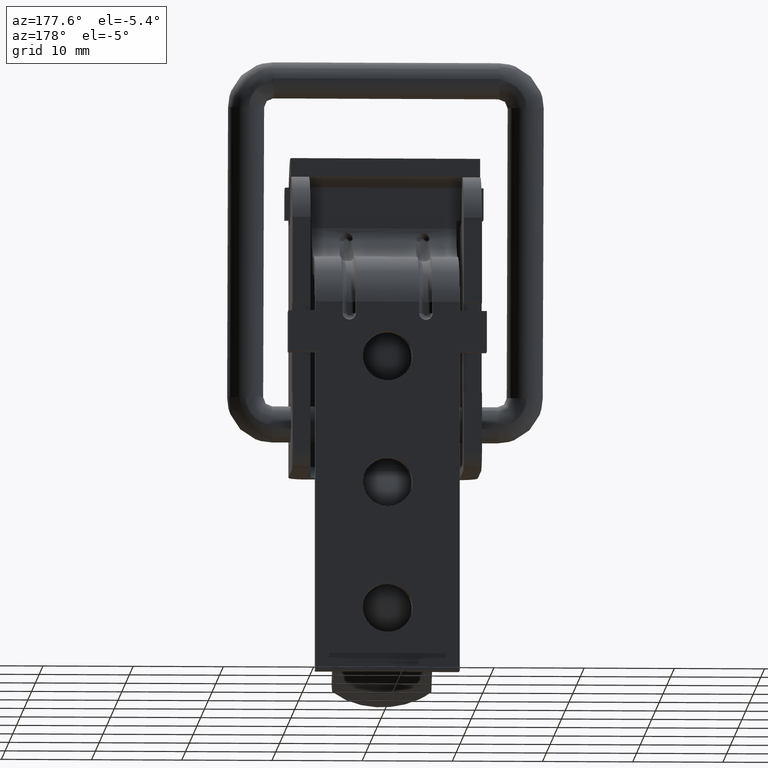
[diagram: clean part render]
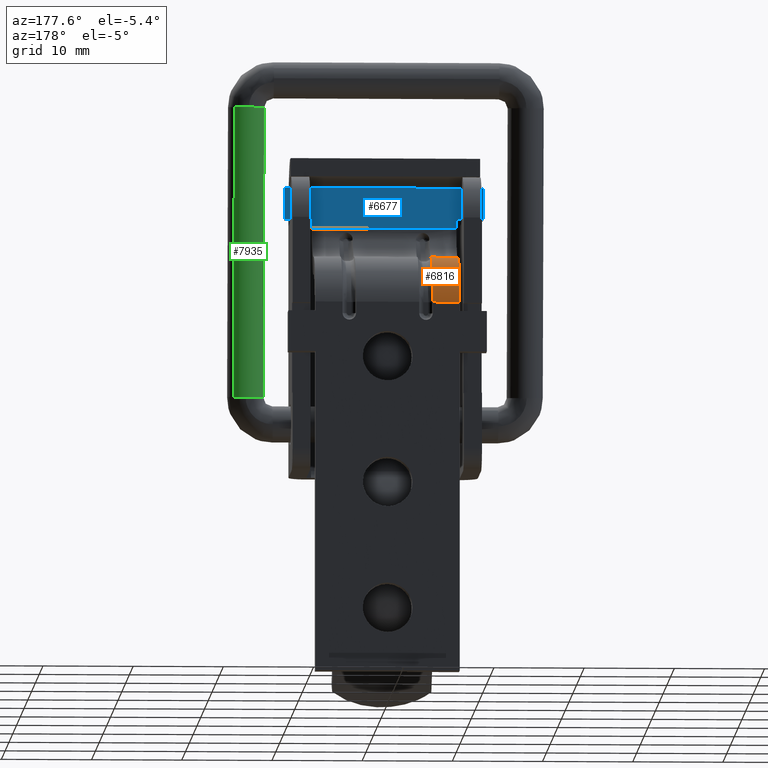
[diagram: same view with three faces highlighted in distinct colors, each labeled with its STEP entity id]
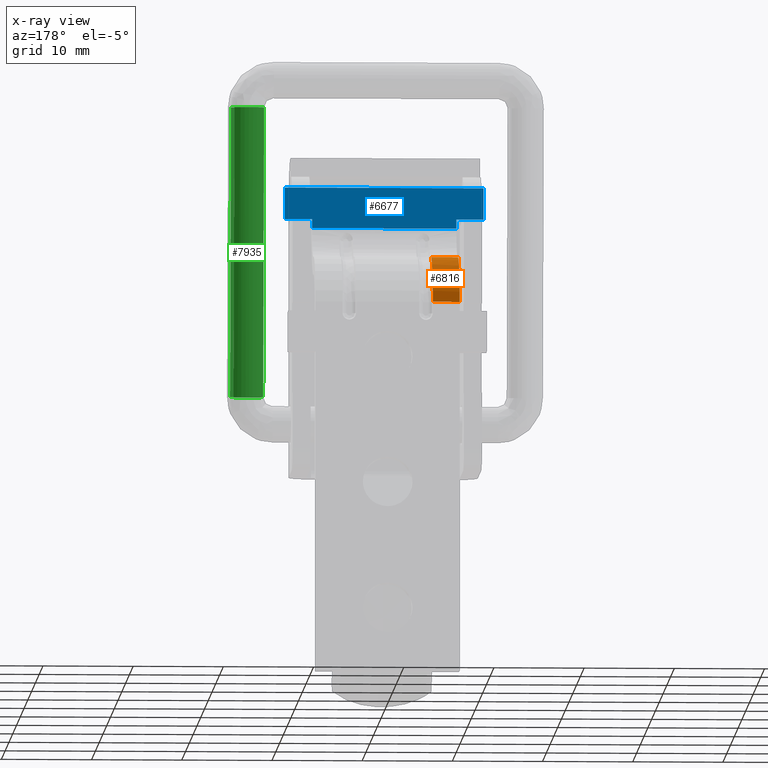
[diagram: x-ray of the same camera — body ghosted, the three highlighted faces saturated]
A machine part, auxiliary view with three faces highlighted in distinct colors.
The next image is the same camera in x-ray (body ghosted, the three faces saturated) — at least one of them is partly hidden behind the body in this view.
Their STEP definitions:

[orange] entity #6816 — the highlighted face is a freeform B-spline surface patch.
#5615=CARTESIAN_POINT('',(-5.0,2.000000000000085,18.500000000000000));
#5616=VERTEX_POINT('',#5615);
#5672=CARTESIAN_POINT('',(-5.0,7.500000000000090,13.0));
#5673=VERTEX_POINT('',#5672);
#5684=CARTESIAN_POINT('',(-5.0,7.500000000000090,13.0));
#5685=CARTESIAN_POINT('',(-5.000000000000008,7.500062064665316,13.382477102440481));
#5686=CARTESIAN_POINT('',(-4.999999999999988,7.429297456282781,14.057403625102150));
#5687=CARTESIAN_POINT('',(-5.000000000000013,7.185367205519238,14.879645425788169));
#5688=CARTESIAN_POINT('',(-4.999999999999996,6.874994575595960,15.579810695480210));
#5689=CARTESIAN_POINT('',(-5.000000000000004,6.464754063712999,16.254873608102120));
#5690=CARTESIAN_POINT('',(-4.999999999999994,5.860025239514116,16.955938035807840));
#5691=CARTESIAN_POINT('',(-5.000000000000002,5.179242957225613,17.514614655932299));
#5692=CARTESIAN_POINT('',(-5.000000000000004,4.460979389565148,17.939155786293281));
#5693=CARTESIAN_POINT('',(-5.000000000000003,3.794019354002085,18.215410805846190));
#5694=CARTESIAN_POINT('',(-5.000000000000002,2.967402635703468,18.438719482402870));
#5695=CARTESIAN_POINT('',(-4.999999999999999,2.382476244702943,18.500065889623251));
#5696=CARTESIAN_POINT('',(-5.0,2.000000000000085,18.500000000000000));
#5697=B_SPLINE_CURVE_WITH_KNOTS('',3,(#5684,#5685,#5686,#5687,#5688,#5689,#5690,#5691,#5692,#5693,#5694,#5695,#5696),.UNSPECIFIED.,.F.,.U.,(4,1,1,1,1,1,1,1,1,1,4),(0.000000050258247,1.147424598638477,2.024865915913889,2.564837096607967,3.442277995862842,4.387198209195670,5.332134766040785,6.074596393570190,6.884554638865188,7.492018337429286,8.639434005814325),.UNSPECIFIED.);
#5698=EDGE_CURVE('',#5673,#5616,#5697,.T.);
#6556=CARTESIAN_POINT('',(-8.0,2.000000000000085,18.500000000000000));
#6557=VERTEX_POINT('',#6556);
#6572=CARTESIAN_POINT('',(-8.0,7.500000000000000,13.0));
#6573=VERTEX_POINT('',#6572);
#6574=CARTESIAN_POINT('',(-8.0,2.000000000000085,18.500000000000000));
#6575=CARTESIAN_POINT('',(-8.000000000000011,2.472482813171673,18.500154260777329));
#6576=CARTESIAN_POINT('',(-7.999999999999984,3.147353970370260,18.412469849688879));
#6577=CARTESIAN_POINT('',(-8.000000000000011,4.069205826910042,18.114157121874118));
#6578=CARTESIAN_POINT('',(-7.999999999999996,4.842293476239624,17.742753935934729));
#6579=CARTESIAN_POINT('',(-7.999999999999987,5.593475769033982,17.199768240450410));
#6580=CARTESIAN_POINT('',(-8.000000000000027,6.270925326486102,16.505458402923701));
#6581=CARTESIAN_POINT('',(-7.999999999999933,6.877134909420597,15.633579547507050));
#6582=CARTESIAN_POINT('',(-8.000000000000005,7.371608811679110,14.439831116815780));
#6583=CARTESIAN_POINT('',(-8.000000000000005,7.500134700668544,13.494974328810629));
#6584=CARTESIAN_POINT('',(-8.0,7.500000000000000,13.0));
#6585=B_SPLINE_CURVE_WITH_KNOTS('',3,(#6574,#6575,#6576,#6577,#6578,#6579,#6580,#6581,#6582,#6583,#6584),.UNSPECIFIED.,.F.,.U.,(4,1,1,1,1,1,1,1,4),(0.000000050257022,1.417398554501729,2.024865915913315,2.902320228727526,3.982257159931999,4.792177720514195,5.804611560366814,7.154539472068876,8.639434005814225),.UNSPECIFIED.);
#6586=EDGE_CURVE('',#6557,#6573,#6585,.T.);
#6788=CARTESIAN_POINT('',(-8.074999999999999,1.856026784306781,18.498115287365572));
#6789=CARTESIAN_POINT('',(-4.923125000000001,1.856026784306781,18.498115287365572));
#6790=CARTESIAN_POINT('',(-8.074999999999998,7.912416403051044,18.656707430914437));
#6791=CARTESIAN_POINT('',(-4.923125000000001,7.912416403051044,18.656707430914437));
#6792=CARTESIAN_POINT('',(-8.074999999999999,7.486384636594541,12.613239584057087));
#6793=CARTESIAN_POINT('',(-4.923125000000001,7.486384636594541,12.613239584057087));
#6801=(BOUNDED_SURFACE()B_SPLINE_SURFACE(1,2,((#6788,#6790,#6792),(#6789,#6791,#6793)),.UNSPECIFIED.,.F.,.F.,.U.)B_SPLINE_SURFACE_WITH_KNOTS((2,2),(3,3),(0.0,3.151874999999999),(0.0,9.741282892486000),.UNSPECIFIED.)GEOMETRIC_REPRESENTATION_ITEM()RATIONAL_B_SPLINE_SURFACE(((1.0,0.670944223154768,0.996392648609106),(1.0,0.670944223154768,0.996392648609106)))REPRESENTATION_ITEM('')SURFACE());
#6802=CARTESIAN_POINT('',(-8.0,2.000000000000085,18.500000000000000));
#6803=CARTESIAN_POINT('',(-5.0,2.000000000000085,18.500000000000000));
#6804=QUASI_UNIFORM_CURVE('',1,(#6802,#6803),.UNSPECIFIED.,.F.,.U.);
#6805=EDGE_CURVE('',#6557,#5616,#6804,.T.);
#6806=ORIENTED_EDGE('',*,*,#6805,.T.);
#6807=ORIENTED_EDGE('',*,*,#5698,.F.);
#6808=CARTESIAN_POINT('',(-8.0,7.500000000000000,13.0));
#6809=CARTESIAN_POINT('',(-5.0,7.500000000000090,13.0));
#6810=QUASI_UNIFORM_CURVE('',1,(#6808,#6809),.UNSPECIFIED.,.F.,.U.);
#6811=EDGE_CURVE('',#6573,#5673,#6810,.T.);
#6812=ORIENTED_EDGE('',*,*,#6811,.F.);
#6813=ORIENTED_EDGE('',*,*,#6586,.F.);
#6814=EDGE_LOOP('',(#6806,#6807,#6812,#6813));
#6815=FACE_OUTER_BOUND('',#6814,.T.);
#6816=ADVANCED_FACE('',(#6815),#6801,.T.);

[blue] entity #6677 — the highlighted face is a freeform B-spline surface patch.
#6287=CARTESIAN_POINT('',(8.000000000000119,-1.499999999999914,22.0));
#6288=VERTEX_POINT('',#6287);
#6303=CARTESIAN_POINT('',(8.000000000000110,-1.499999999999946,23.0));
#6304=VERTEX_POINT('',#6303);
#6305=CARTESIAN_POINT('',(8.000000000000119,-1.499999999999914,22.0));
#6306=CARTESIAN_POINT('',(8.000000000000110,-1.499999999999946,23.0));
#6307=QUASI_UNIFORM_CURVE('',1,(#6305,#6306),.UNSPECIFIED.,.F.,.U.);
#6308=EDGE_CURVE('',#6288,#6304,#6307,.T.);
#6331=CARTESIAN_POINT('',(11.0,-1.499999999999946,23.0));
#6332=VERTEX_POINT('',#6331);
#6333=CARTESIAN_POINT('',(8.000000000000110,-1.499999999999946,23.0));
#6334=CARTESIAN_POINT('',(11.0,-1.499999999999946,23.0));
#6335=QUASI_UNIFORM_CURVE('',1,(#6333,#6334),.UNSPECIFIED.,.F.,.U.);
#6336=EDGE_CURVE('',#6304,#6332,#6335,.T.);
#6351=CARTESIAN_POINT('',(11.0,-1.499999999999946,26.500000000000000));
#6352=VERTEX_POINT('',#6351);
#6365=CARTESIAN_POINT('',(11.0,-1.499999999999946,23.0));
#6366=CARTESIAN_POINT('',(11.0,-1.499999999999946,26.500000000000000));
#6367=QUASI_UNIFORM_CURVE('',1,(#6365,#6366),.UNSPECIFIED.,.F.,.U.);
#6368=EDGE_CURVE('',#6332,#6352,#6367,.T.);
#6506=CARTESIAN_POINT('',(-11.0,-1.499999999999946,26.500000000000000));
#6507=VERTEX_POINT('',#6506);
#6513=CARTESIAN_POINT('',(-11.0,-1.499999999999914,23.0));
#6514=VERTEX_POINT('',#6513);
#6515=CARTESIAN_POINT('',(-11.0,-1.499999999999946,26.500000000000000));
#6516=CARTESIAN_POINT('',(-11.0,-1.499999999999914,23.0));
#6517=QUASI_UNIFORM_CURVE('',1,(#6515,#6516),.UNSPECIFIED.,.F.,.U.);
#6518=EDGE_CURVE('',#6507,#6514,#6517,.T.);
#6542=CARTESIAN_POINT('',(-8.0,-1.499999999999946,23.0));
#6543=VERTEX_POINT('',#6542);
#6549=CARTESIAN_POINT('',(-8.0,-1.499999999999914,22.0));
#6550=VERTEX_POINT('',#6549);
#6551=CARTESIAN_POINT('',(-8.0,-1.499999999999946,23.0));
#6552=CARTESIAN_POINT('',(-8.0,-1.499999999999914,22.0));
#6553=QUASI_UNIFORM_CURVE('',1,(#6551,#6552),.UNSPECIFIED.,.F.,.U.);
#6554=EDGE_CURVE('',#6543,#6550,#6553,.T.);
#6645=CARTESIAN_POINT('',(-11.0,-1.499999999999914,23.0));
#6646=CARTESIAN_POINT('',(-8.0,-1.499999999999946,23.0));
#6647=QUASI_UNIFORM_CURVE('',1,(#6645,#6646),.UNSPECIFIED.,.F.,.U.);
#6648=EDGE_CURVE('',#6514,#6543,#6647,.T.);
#6654=CARTESIAN_POINT('',(-12.098899957359730,-1.499999999999914,21.775225008721868));
#6655=CARTESIAN_POINT('',(-12.098899957359730,-1.499999999999914,26.724775111977539));
#6656=CARTESIAN_POINT('',(12.098900547445711,-1.499999999999914,21.775225008721868));
#6657=CARTESIAN_POINT('',(12.098900547445711,-1.499999999999914,26.724775111977539));
#6658=B_SPLINE_SURFACE_WITH_KNOTS('',1,1,((#6654,#6656),(#6655,#6657)),.UNSPECIFIED.,.F.,.F.,.U.,(2,2),(2,2),(0.0,4.949550103255664),(0.0,24.197800504805450),.UNSPECIFIED.);
#6659=ORIENTED_EDGE('',*,*,#6368,.F.);
#6660=ORIENTED_EDGE('',*,*,#6336,.F.);
#6661=ORIENTED_EDGE('',*,*,#6308,.F.);
#6662=CARTESIAN_POINT('',(-8.0,-1.499999999999914,22.0));
#6663=CARTESIAN_POINT('',(8.000000000000119,-1.499999999999914,22.0));
#6664=QUASI_UNIFORM_CURVE('',1,(#6662,#6663),.UNSPECIFIED.,.F.,.U.);
#6665=EDGE_CURVE('',#6550,#6288,#6664,.T.);
#6666=ORIENTED_EDGE('',*,*,#6665,.F.);
#6667=ORIENTED_EDGE('',*,*,#6554,.F.);
#6668=ORIENTED_EDGE('',*,*,#6648,.F.);
#6669=ORIENTED_EDGE('',*,*,#6518,.F.);
#6670=CARTESIAN_POINT('',(-11.0,-1.499999999999946,26.500000000000000));
#6671=CARTESIAN_POINT('',(11.0,-1.499999999999946,26.500000000000000));
#6672=QUASI_UNIFORM_CURVE('',1,(#6670,#6671),.UNSPECIFIED.,.F.,.U.);
#6673=EDGE_CURVE('',#6507,#6352,#6672,.T.);
#6674=ORIENTED_EDGE('',*,*,#6673,.T.);
#6675=EDGE_LOOP('',(#6659,#6660,#6661,#6666,#6667,#6668,#6669,#6674));
#6676=FACE_OUTER_BOUND('',#6675,.T.);
#6677=ADVANCED_FACE('',(#6676),#6658,.T.);

[green] entity #7935 — the highlighted face is a freeform B-spline surface patch.
#7748=CARTESIAN_POINT('',(17.120705282292398,-1.171884972159153,35.118237105096640));
#7749=VERTEX_POINT('',#7748);
#7758=CARTESIAN_POINT('',(17.120705295809071,-1.171884953455932,3.000000000100478));
#7759=VERTEX_POINT('',#7758);
#7760=CARTESIAN_POINT('',(17.120705295809071,-1.171884953455932,3.000000000100478));
#7761=CARTESIAN_POINT('',(17.120705282292398,-1.171884972159153,35.118237105096640));
#7762=QUASI_UNIFORM_CURVE('',1,(#7760,#7761),.UNSPECIFIED.,.F.,.U.);
#7763=EDGE_CURVE('',#7759,#7749,#7762,.T.);
#7775=CARTESIAN_POINT('',(16.851180352888210,1.474554730606532,2.999999999919746));
#7776=VERTEX_POINT('',#7775);
#7786=CARTESIAN_POINT('',(16.851180356896538,1.474554727074220,35.118237105129481));
#7787=VERTEX_POINT('',#7786);
#7788=CARTESIAN_POINT('',(16.851180352888210,1.474554730606532,2.999999999919746));
#7789=CARTESIAN_POINT('',(16.851180356896538,1.474554727074220,35.118237105129481));
#7790=QUASI_UNIFORM_CURVE('',1,(#7788,#7789),.UNSPECIFIED.,.F.,.U.);
#7791=EDGE_CURVE('',#7776,#7787,#7790,.T.);
#7805=CARTESIAN_POINT('',(16.851180415231319,1.474554673620249,2.197044071656591));
#7806=CARTESIAN_POINT('',(15.376625741611079,2.825735088851569,2.197044071656591));
#7807=CARTESIAN_POINT('',(14.025445326379749,1.351180415231321,2.197044071656591));
#7808=CARTESIAN_POINT('',(12.674264911148432,-0.123374258388927,2.197044071656591));
#7809=CARTESIAN_POINT('',(14.148819584768679,-1.474554673620247,2.197044071656591));
#7810=CARTESIAN_POINT('',(15.623374258388928,-2.825735088851567,2.197044071656591));
#7811=CARTESIAN_POINT('',(16.974554673620251,-1.351180415231319,2.197044071656591));
#7812=CARTESIAN_POINT('',(17.052822919433339,-1.265765613211717,2.197044071656591));
#7813=CARTESIAN_POINT('',(17.120705324658456,-1.171884913557532,2.197044071656591));
#7814=CARTESIAN_POINT('',(16.851180415231319,1.474554673620246,35.941266932203781));
#7815=CARTESIAN_POINT('',(15.376625741611079,2.825735088851566,35.941266932203789));
#7816=CARTESIAN_POINT('',(14.025445326379749,1.351180415231319,35.941266932203781));
#7817=CARTESIAN_POINT('',(12.674264911148432,-0.123374258388929,35.941266932203789));
#7818=CARTESIAN_POINT('',(14.148819584768679,-1.474554673620249,35.941266932203781));
#7819=CARTESIAN_POINT('',(15.623374258388928,-2.825735088851569,35.941266932203789));
#7820=CARTESIAN_POINT('',(16.974554673620251,-1.351180415231321,35.941266932203781));
#7821=CARTESIAN_POINT('',(17.052822919433339,-1.265765613211719,35.941266932203781));
#7822=CARTESIAN_POINT('',(17.120705324658456,-1.171884913557534,35.941266932203781));
#7830=(BOUNDED_SURFACE()B_SPLINE_SURFACE(2,1,((#7805,#7814),(#7806,#7815),(#7807,#7816),(#7808,#7817),(#7809,#7818),(#7810,#7819),(#7811,#7820),(#7812,#7821),(#7813,#7822)),.UNSPECIFIED.,.F.,.F.,.U.)B_SPLINE_SURFACE_WITH_KNOTS((3,2,2,2,3),(2,2),(0.0,3.313708498984762,6.627416997969523,9.941125496954285,10.206222176873069),(0.0,33.744222860547197),.UNSPECIFIED.)GEOMETRIC_REPRESENTATION_ITEM()RATIONAL_B_SPLINE_SURFACE(((1.0,1.0),(0.707106781186548,0.707106781186548),(1.0,1.0),(0.707106781186548,0.707106781186548),(1.0,1.0),(0.707106781186548,0.707106781186548),(1.0,1.0),(0.976568542494924,0.976568542494924),(0.956886118190660,0.956886118190660)))REPRESENTATION_ITEM('')SURFACE());
#7831=CARTESIAN_POINT('',(15.500000000014859,-2.0,35.118237105111731));
#7832=VERTEX_POINT('',#7831);
#7833=CARTESIAN_POINT('',(17.120705282292398,-1.171884972159153,35.118237105096640));
#7834=CARTESIAN_POINT('',(16.993941723831419,-1.347433448377825,35.118237105097862));
#7835=CARTESIAN_POINT('',(16.774569307454851,-1.565161715775893,35.118237105099837));
#7836=CARTESIAN_POINT('',(16.363456859742669,-1.819273857253440,35.118237105103937));
#7837=CARTESIAN_POINT('',(15.972375256786270,-1.963915166221186,35.118237105106900));
#7838=CARTESIAN_POINT('',(15.647616360541770,-2.000017481533319,35.118237105110687));
#7839=CARTESIAN_POINT('',(15.500000000014859,-2.0,35.118237105111731));
#7840=B_SPLINE_CURVE_WITH_KNOTS('',3,(#7833,#7834,#7835,#7836,#7837,#7838,#7839),.UNSPECIFIED.,.F.,.U.,(4,1,1,1,4),(0.000000039893102,0.649525500290499,0.915254865928587,1.446667811071810,1.889524555917839),.UNSPECIFIED.);
#7841=EDGE_CURVE('',#7749,#7832,#7840,.T.);
#7842=ORIENTED_EDGE('',*,*,#7841,.T.);
#7843=CARTESIAN_POINT('',(13.500000000000000,-1.942300E-028,35.118237105093101));
#7844=VERTEX_POINT('',#7843);
#7845=CARTESIAN_POINT('',(15.500000000014859,-2.0,35.118237105111731));
#7846=CARTESIAN_POINT('',(15.287270722404211,-2.000128069553501,35.118237105109692));
#7847=CARTESIAN_POINT('',(14.943740346259300,-1.944637251485546,35.118237105106658));
#7848=CARTESIAN_POINT('',(14.537912424249971,-1.764707448894393,35.118237105102722));
#7849=CARTESIAN_POINT('',(14.237790646597430,-1.564177538052775,35.118237105100043));
#7850=CARTESIAN_POINT('',(13.999637839092481,-1.337441184884783,35.118237105097677));
#7851=CARTESIAN_POINT('',(13.784644062259471,-1.047514026920094,35.118237105095822));
#7852=CARTESIAN_POINT('',(13.570137450129730,-0.621653153506370,35.118237105093719));
#7853=CARTESIAN_POINT('',(13.499818941145850,-0.245465675668129,35.118237105093122));
#7854=CARTESIAN_POINT('',(13.500000000000000,-1.942300E-028,35.118237105093101));
#7855=B_SPLINE_CURVE_WITH_KNOTS('',3,(#7845,#7846,#7847,#7848,#7849,#7850,#7851,#7852,#7853,#7854),.UNSPECIFIED.,.F.,.U.,(4,1,1,1,1,1,1,4),(0.000000039028743,0.638151969917989,1.030863850942736,1.325399081862987,1.718096464638028,2.012629720084906,2.405342338265210,3.141671488674409),.UNSPECIFIED.);
#7856=EDGE_CURVE('',#7832,#7844,#7855,.T.);
#7857=ORIENTED_EDGE('',*,*,#7856,.T.);
#7858=CARTESIAN_POINT('',(15.269071540544561,1.986623277477020,35.118237106336778));
#7859=VERTEX_POINT('',#7858);
#7860=CARTESIAN_POINT('',(13.500000000000000,-1.942300E-028,35.118237105093101));
#7861=CARTESIAN_POINT('',(13.499973020952760,0.151569722885047,35.118237105093030));
#7862=CARTESIAN_POINT('',(13.531163812287531,0.424383696340382,35.118237105115071));
#7863=CARTESIAN_POINT('',(13.664524691021320,0.829142280390904,35.118237105208728));
#7864=CARTESIAN_POINT('',(13.877826492422891,1.199208192134860,35.118237105358723));
#7865=CARTESIAN_POINT('',(14.221060516533930,1.567510573652058,35.118237105600052));
#7866=CARTESIAN_POINT('',(14.688695749796890,1.860088726898824,35.118237105928877));
#7867=CARTESIAN_POINT('',(15.073336649010850,1.963941130756000,35.118237106199039));
#7868=CARTESIAN_POINT('',(15.269071540544561,1.986623277477020,35.118237106336778));
#7869=B_SPLINE_CURVE_WITH_KNOTS('',3,(#7860,#7861,#7862,#7863,#7864,#7865,#7866,#7867,#7868),.UNSPECIFIED.,.F.,.U.,(4,1,1,1,1,1,4),(0.000000038778402,0.454712679571215,0.818499241371480,1.273228579161642,1.727922894471006,2.319077427437564,2.910210633899304),.UNSPECIFIED.);
#7870=EDGE_CURVE('',#7844,#7859,#7869,.T.);
#7871=ORIENTED_EDGE('',*,*,#7870,.T.);
#7872=CARTESIAN_POINT('',(15.269071540544561,1.986623277477020,35.118237106336778));
#7873=CARTESIAN_POINT('',(15.517520565252900,2.015732874494307,35.118237106107557));
#7874=CARTESIAN_POINT('',(15.871029454063530,1.989940019015960,35.118237105805413));
#7875=CARTESIAN_POINT('',(16.412747727411301,1.802450903384815,35.118237105396709));
#7876=CARTESIAN_POINT('',(16.686633163513740,1.625554637842578,35.118237105219507));
#7877=CARTESIAN_POINT('',(16.851180356896538,1.474554727074220,35.118237105129481));
#7878=B_SPLINE_CURVE_WITH_KNOTS('',3,(#7872,#7873,#7874,#7875,#7876,#7877),.UNSPECIFIED.,.F.,.U.,(4,1,1,4),(0.000000027825931,0.750315554118439,1.045068666784368,1.714987296819600),.UNSPECIFIED.);
#7879=EDGE_CURVE('',#7859,#7787,#7878,.T.);
#7880=ORIENTED_EDGE('',*,*,#7879,.T.);
#7881=ORIENTED_EDGE('',*,*,#7791,.F.);
#7882=CARTESIAN_POINT('',(15.525132080872149,1.999842088393740,2.999999999753122));
#7883=VERTEX_POINT('',#7882);
#7884=CARTESIAN_POINT('',(15.525132080872149,1.999842088393740,2.999999999753122));
#7885=CARTESIAN_POINT('',(15.692233336889860,1.997786499520190,2.999999999774125));
#7886=CARTESIAN_POINT('',(16.010702421534489,1.953518166437362,2.999999999814129));
#7887=CARTESIAN_POINT('',(16.465613222423819,1.773325666212557,2.999999999871299));
#7888=CARTESIAN_POINT('',(16.727998680871430,1.587484683362799,2.999999999904264));
#7889=CARTESIAN_POINT('',(16.851180352888210,1.474554730606532,2.999999999919746));
#7890=B_SPLINE_CURVE_WITH_KNOTS('',3,(#7884,#7885,#7886,#7887,#7888,#7889),.UNSPECIFIED.,.F.,.U.,(4,1,1,4),(0.000000015140154,0.501339352432224,0.957089247719606,1.458428585011701),.UNSPECIFIED.);
#7891=EDGE_CURVE('',#7883,#7776,#7890,.T.);
#7892=ORIENTED_EDGE('',*,*,#7891,.F.);
#7893=CARTESIAN_POINT('',(13.500000000000000,9.011451E-016,3.000000000001280));
#7894=VERTEX_POINT('',#7893);
#7895=CARTESIAN_POINT('',(13.500000000000000,9.011451E-016,3.000000000001280));
#7896=CARTESIAN_POINT('',(13.499959913149040,0.164937582221458,3.000000000018311));
#7897=CARTESIAN_POINT('',(13.534885520346389,0.445300807377363,3.000000000039396));
#7898=CARTESIAN_POINT('',(13.670572716881130,0.836316506206303,3.000000000049299));
#7899=CARTESIAN_POINT('',(13.859824190578260,1.167229992043020,3.000000000040964));
#7900=CARTESIAN_POINT('',(14.121364097746470,1.466936329951466,3.000000000013196));
#7901=CARTESIAN_POINT('',(14.489249137856090,1.749869130293974,2.999999999959817));
#7902=CARTESIAN_POINT('',(14.963758298132049,1.954953588291555,2.999999999874488));
#7903=CARTESIAN_POINT('',(15.343717906825569,2.002174804447912,2.999999999794078));
#7904=CARTESIAN_POINT('',(15.525132080872149,1.999842088393740,2.999999999753122));
#7905=B_SPLINE_CURVE_WITH_KNOTS('',3,(#7895,#7896,#7897,#7898,#7899,#7900,#7901,#7902,#7903,#7904),.UNSPECIFIED.,.F.,.U.,(4,1,1,1,1,1,1,4),(0.000000040872632,0.494810549200919,0.841183010572145,1.237038814978782,1.632881838920426,2.028731463465815,2.622513511201563,3.166806137926618),.UNSPECIFIED.);
#7906=EDGE_CURVE('',#7894,#7883,#7905,.T.);
#7907=ORIENTED_EDGE('',*,*,#7906,.F.);
#7908=CARTESIAN_POINT('',(15.360533496329630,-1.995131347644551,2.999999999331719));
#7909=VERTEX_POINT('',#7908);
#7910=CARTESIAN_POINT('',(15.360533496329630,-1.995131347644551,2.999999999331719));
#7911=CARTESIAN_POINT('',(15.204558087317910,-1.984258603149115,2.999999999387854));
#7912=CARTESIAN_POINT('',(14.895200164341921,-1.925652857541943,2.999999999499177));
#7913=CARTESIAN_POINT('',(14.406727213579231,-1.706711170009537,2.999999999674973));
#7914=CARTESIAN_POINT('',(13.995679566740360,-1.358386641926880,2.999999999822896));
#7915=CARTESIAN_POINT('',(13.717031489077920,-0.938642764738905,2.999999999923174));
#7916=CARTESIAN_POINT('',(13.544343838397641,-0.500296339137143,2.999999999985318));
#7917=CARTESIAN_POINT('',(13.499932090552861,-0.187632884102596,3.000000000001298));
#7918=CARTESIAN_POINT('',(13.500000000000000,9.011451E-016,3.000000000001280));
#7919=B_SPLINE_CURVE_WITH_KNOTS('',3,(#7910,#7911,#7912,#7913,#7914,#7915,#7916,#7917,#7918),.UNSPECIFIED.,.F.,.U.,(4,1,1,1,1,1,4),(0.000000024728767,0.469065391876645,0.938155821732358,1.594853491312375,2.063924648413355,2.439197859755395,3.002081659076564),.UNSPECIFIED.);
#7920=EDGE_CURVE('',#7909,#7894,#7919,.T.);
#7921=ORIENTED_EDGE('',*,*,#7920,.F.);
#7922=CARTESIAN_POINT('',(17.120705295809071,-1.171884953455932,3.000000000100478));
#7923=CARTESIAN_POINT('',(17.009305394914950,-1.326098042562498,3.000000000079018));
#7924=CARTESIAN_POINT('',(16.816239529813998,-1.525507427376944,3.000000000023774));
#7925=CARTESIAN_POINT('',(16.456932170444521,-1.769236579145127,2.999999999886987));
#7926=CARTESIAN_POINT('',(16.008669014681640,-1.966099331162396,2.999999999687821));
#7927=CARTESIAN_POINT('',(15.603027491997450,-2.012299045364252,2.999999999472398));
#7928=CARTESIAN_POINT('',(15.360533496329630,-1.995131347644551,2.999999999331719));
#7929=B_SPLINE_CURVE_WITH_KNOTS('',3,(#7922,#7923,#7924,#7925,#7926,#7927,#7928),.UNSPECIFIED.,.F.,.U.,(4,1,1,1,4),(0.000000044093656,0.570688035277058,0.824327287498432,1.299895207763518,2.029108451122901),.UNSPECIFIED.);
#7930=EDGE_CURVE('',#7759,#7909,#7929,.T.);
#7931=ORIENTED_EDGE('',*,*,#7930,.F.);
#7932=ORIENTED_EDGE('',*,*,#7763,.T.);
#7933=EDGE_LOOP('',(#7842,#7857,#7871,#7880,#7881,#7892,#7907,#7921,#7931,#7932));
#7934=FACE_OUTER_BOUND('',#7933,.T.);
#7935=ADVANCED_FACE('',(#7934),#7830,.T.);